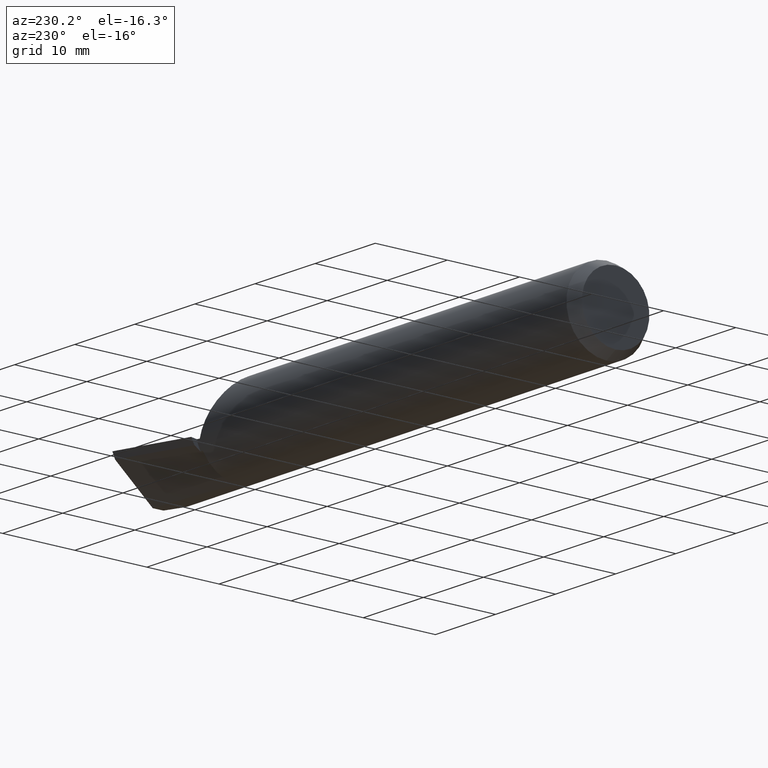
[diagram: clean part render]
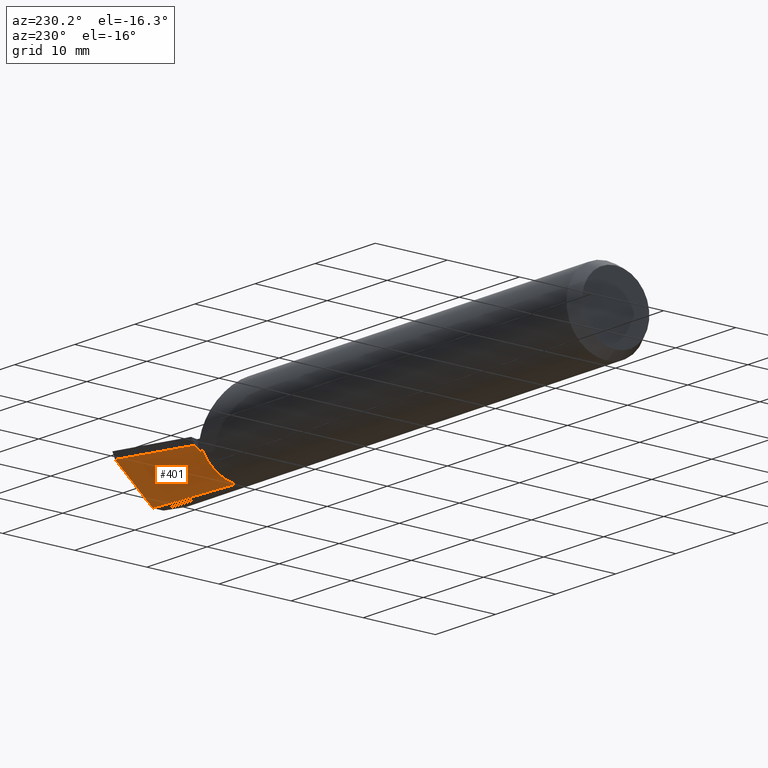
[diagram: same view with one face highlighted and labeled with its STEP entity id]
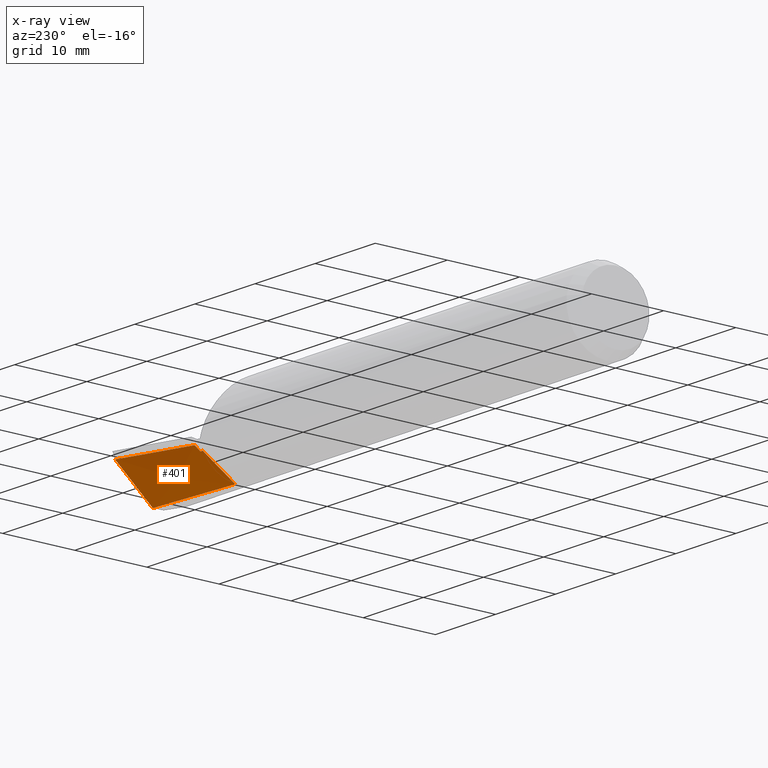
[diagram: x-ray of the same camera — body ghosted, the highlighted face saturated]
A machine part, auxiliary view. The second image highlights one B-rep face of the part: STEP entity #401.
The next image is the same camera in x-ray: the body ghosted, the highlighted face saturated — about 0% of this face is hidden behind the body in this view.
In plain terms, the highlighted face is a freeform B-spline surface patch.
Its self-contained STEP definition (entity closure, byte-faithful):
#5 = VERTEX_POINT ( 'NONE', #477 ) ;
#6 = CARTESIAN_POINT ( 'NONE',  ( 2.375000000000001776, 0.2195062469289532914, -0.09505118791255254274 ) ) ;
#26 = VERTEX_POINT ( 'NONE', #544 ) ;
#30 = B_SPLINE_CURVE_WITH_KNOTS ( 'NONE', 3,
 ( #405, #529, #416, #184 ),
 .UNSPECIFIED., .F., .F.,
 ( 4, 4 ),
 ( 6.281806324945532255E-05, 0.006714991020779010472 ),
 .UNSPECIFIED. ) ;
#34 = B_SPLINE_CURVE_WITH_KNOTS ( 'NONE', 3,
 ( #559, #496, #345, #736 ),
 .UNSPECIFIED., .F., .F.,
 ( 4, 4 ),
 ( 0.0003823762464701765972, 0.01264710855387443829 ),
 .UNSPECIFIED. ) ;
#38 =( BOUNDED_CURVE ( )  B_SPLINE_CURVE ( 2, ( #173, #64, #438 ),
 .UNSPECIFIED., .F., .T. ) 
 B_SPLINE_CURVE_WITH_KNOTS ( ( 3, 3 ),
 ( 0.4075927071583006489, 0.4196108242066911576 ),
 .UNSPECIFIED. ) 
 CURVE ( )  GEOMETRIC_REPRESENTATION_ITEM ( )  RATIONAL_B_SPLINE_CURVE ( ( 0.9974221972044268192, 0.9975518224474401174, 0.9976913329914361972 ) ) 
 REPRESENTATION_ITEM ( '' )  );
#53 = ORIENTED_EDGE ( 'NONE', *, *, #116, .F. ) ;
#54 = CARTESIAN_POINT ( 'NONE',  ( 2.489999999999999769, 0.1918135994642089504, -0.1049541116906446275 ) ) ;
#60 = VERTEX_POINT ( 'NONE', #260 ) ;
#64 = CARTESIAN_POINT ( 'NONE',  ( 2.482495906476935410, 0.01541270954320094443, -0.2181071841326581162 ) ) ;
#78 = EDGE_CURVE ( 'NONE', #372, #99, #162, .T. ) ;
#94 = CARTESIAN_POINT ( 'NONE',  ( 2.474998967115994652, 0.1911388645456205126, -0.1061779492325103103 ) ) ;
#99 = VERTEX_POINT ( 'NONE', #466 ) ;
#104 = FACE_OUTER_BOUND ( 'NONE', #115, .T. ) ;
#115 = EDGE_LOOP ( 'NONE', ( #641, #299, #303, #549, #53, #391, #574, #168 ) ) ;
#116 = EDGE_CURVE ( 'NONE', #372, #411, #342, .T. ) ;
#117 = CARTESIAN_POINT ( 'NONE',  ( 2.489999999999999769, 0.01517653587899060220, -0.2186499999999646504 ) ) ;
#162 =( BOUNDED_CURVE ( )  B_SPLINE_CURVE ( 2, ( #94, #505, #610 ),
 .UNSPECIFIED., .F., .T. ) 
 B_SPLINE_CURVE_WITH_KNOTS ( ( 3, 3 ),
 ( 0.5803891757933095086, 0.5924072928417014605 ),
 .UNSPECIFIED. ) 
 CURVE ( )  GEOMETRIC_REPRESENTATION_ITEM ( )  RATIONAL_B_SPLINE_CURVE ( ( 0.9976913329914360862, 0.9975518224474400064, 0.9974221972044267082 ) ) 
 REPRESENTATION_ITEM ( '' )  );
#168 = ORIENTED_EDGE ( 'NONE', *, *, #733, .F. ) ;
#173 = CARTESIAN_POINT ( 'NONE',  ( 2.489999999999999769, 0.01609851000112816344, -0.2180565533886646701 ) ) ;
#184 = CARTESIAN_POINT ( 'NONE',  ( 2.995650168487128173, 0.2365632825314395171, -0.03543351693485011222 ) ) ;
#186 =( BOUNDED_CURVE ( )  B_SPLINE_CURVE ( 1, ( #117, #452 ),
 .UNSPECIFIED., .F., .T. ) 
 B_SPLINE_CURVE_WITH_KNOTS ( ( 2, 2 ),
 ( 0.001548922772798105125, 0.001576772748276457229 ),
 .UNSPECIFIED. ) 
 CURVE ( )  GEOMETRIC_REPRESENTATION_ITEM ( )  RATIONAL_B_SPLINE_CURVE ( ( 0.9974221972044268192, 0.9974221972044268192 ) ) 
 REPRESENTATION_ITEM ( '' )  );
#215 = CARTESIAN_POINT ( 'NONE',  ( 2.062500000000002665, -0.1025015563926100354, -0.2521463777385072325 ) ) ;
#221 = CARTESIAN_POINT ( 'NONE',  ( 2.687500000000001332, -0.03374861584210742810, -0.2700840532099205715 ) ) ;
#260 = CARTESIAN_POINT ( 'NONE',  ( 2.489999999999999769, 0.01609851000112816344, -0.2180565533886646701 ) ) ;
#264 =( BOUNDED_SURFACE ( )  B_SPLINE_SURFACE ( 1, 2, ( 
 ( #389, #550, #6, #621, #269 ),
 ( #283, #221, #682, #215, #668 ) ),
 .UNSPECIFIED., .F., .F., .F. ) 
 B_SPLINE_SURFACE_WITH_KNOTS ( ( 2, 2 ),
 ( 3, 2, 3 ),
 ( 0.000000000000000000, 1.000000000000000000 ),
 ( 0.000000000000000000, 0.5000000000000000000, 1.000000000000000000 ),
 .UNSPECIFIED. ) 
 GEOMETRIC_REPRESENTATION_ITEM ( )  RATIONAL_B_SPLINE_SURFACE ( (
 ( 1.000000000000000000, 0.9914448613738103822, 1.000000000000000000, 0.9914448613738103822, 1.000000000000000000),
 ( 1.000000000000000000, 0.9914448613738103822, 1.000000000000000000, 0.9914448613738103822, 1.000000000000000000) ) ) 
 REPRESENTATION_ITEM ( '' )  SURFACE ( )  );
#269 = CARTESIAN_POINT ( 'NONE',  ( 1.750000000000003109, 0.1874256952490743477, -0.1486247944483796435 ) ) ;
#283 = CARTESIAN_POINT ( 'NONE',  ( 3.000000000000000444, 0.001777810631851324845, -0.2698499999999999233 ) ) ;
#296 = CARTESIAN_POINT ( 'NONE',  ( 2.995650168487128173, 0.2365632825314395171, -0.03543351693485011222 ) ) ;
#299 = ORIENTED_EDGE ( 'NONE', *, *, #346, .F. ) ;
#303 = ORIENTED_EDGE ( 'NONE', *, *, #469, .T. ) ;
#318 =( BOUNDED_CURVE ( )  B_SPLINE_CURVE ( 1, ( #54, #339 ),
 .UNSPECIFIED., .F., .T. ) 
 B_SPLINE_CURVE_WITH_KNOTS ( ( 2, 2 ),
 ( 0.006884580001453520851, 0.007852015136062377026 ),
 .UNSPECIFIED. ) 
 CURVE ( )  GEOMETRIC_REPRESENTATION_ITEM ( )  RATIONAL_B_SPLINE_CURVE ( ( 0.9974221972044268192, 0.9974221972044268192 ) ) 
 REPRESENTATION_ITEM ( '' )  );
#339 = CARTESIAN_POINT ( 'NONE',  ( 2.489999999999999769, 0.2238405633532558059, -0.08433933223662058720 ) ) ;
#342 = LINE ( 'NONE', #568, #406 ) ;
#344 =( BOUNDED_CURVE ( )  B_SPLINE_CURVE ( 2, ( #373, #647, #726 ),
 .UNSPECIFIED., .F., .F. ) 
 B_SPLINE_CURVE_WITH_KNOTS ( ( 3, 3 ),
 ( 0.003509261759326628982, 0.4075927071583004824 ),
 .UNSPECIFIED. ) 
 CURVE ( )  GEOMETRIC_REPRESENTATION_ITEM ( )  RATIONAL_B_SPLINE_CURVE ( ( 0.9998807539633451924, 0.9930638260389134109, 0.9974221972044268192 ) ) 
 REPRESENTATION_ITEM ( '' )  );
#345 = CARTESIAN_POINT ( 'NONE',  ( 2.810970655082818404, 0.03974745817720095470, -0.2186500000000000110 ) ) ;
#346 = EDGE_CURVE ( 'NONE', #26, #348, #34, .T. ) ;
#348 = VERTEX_POINT ( 'NONE', #609 ) ;
#372 = VERTEX_POINT ( 'NONE', #562 ) ;
#373 = CARTESIAN_POINT ( 'NONE',  ( 2.995650168487128173, 0.2365632825314395171, -0.03543351693485011222 ) ) ;
#389 = CARTESIAN_POINT ( 'NONE',  ( 3.000000000000000444, 0.2366278106318485952, -0.03500000000000001027 ) ) ;
#391 = ORIENTED_EDGE ( 'NONE', *, *, #78, .T. ) ;
#401 = ADVANCED_FACE ( 'NONE', ( #104 ), #264, .T. ) ;
#403 = DIRECTION ( 'NONE',  ( 0.000000000000000000, -0.8443279255020124108, -0.5358267949790008755 ) ) ;
#405 = CARTESIAN_POINT ( 'NONE',  ( 2.971533666062131207, 0.05098806548735788924, -0.2186499999999999277 ) ) ;
#406 = VECTOR ( 'NONE', #403, 39.37007874015748854 ) ;
#411 = VERTEX_POINT ( 'NONE', #673 ) ;
#416 = CARTESIAN_POINT ( 'NONE',  ( 2.987540355590121433, 0.1753319710273700816, -0.09712830031009450638 ) ) ;
#428 = EDGE_CURVE ( 'NONE', #60, #411, #38, .T. ) ;
#438 = CARTESIAN_POINT ( 'NONE',  ( 2.474996901347982892, 0.01471922584789448971, -0.2181539979772589843 ) ) ;
#450 = EDGE_CURVE ( 'NONE', #99, #5, #318, .T. ) ;
#452 = CARTESIAN_POINT ( 'NONE',  ( 2.489999999999999769, 0.01609851000112816344, -0.2180565533886646701 ) ) ;
#466 = CARTESIAN_POINT ( 'NONE',  ( 2.489999999999999769, 0.1918135994642089504, -0.1049541116906446275 ) ) ;
#469 = EDGE_CURVE ( 'NONE', #26, #60, #186, .T. ) ;
#477 = CARTESIAN_POINT ( 'NONE',  ( 2.489999999999999769, 0.2238405633532558059, -0.08433933223662058720 ) ) ;
#496 = CARTESIAN_POINT ( 'NONE',  ( 2.650423596466449538, 0.02829228920356244292, -0.2186500000000000110 ) ) ;
#505 = CARTESIAN_POINT ( 'NONE',  ( 2.482495906476937630, 0.1914835127187945740, -0.1055573765428618332 ) ) ;
#529 = CARTESIAN_POINT ( 'NONE',  ( 2.979501768381279003, 0.1134645655244296419, -0.1581978106672607687 ) ) ;
#534 = VERTEX_POINT ( 'NONE', #296 ) ;
#544 = CARTESIAN_POINT ( 'NONE',  ( 2.489999999999999769, 0.01517653587899060220, -0.2186499999999646504 ) ) ;
#549 = ORIENTED_EDGE ( 'NONE', *, *, #428, .T. ) ;
#550 = CARTESIAN_POINT ( 'NONE',  ( 2.687500000000001332, 0.2320199732162897266, -0.06615264226832021088 ) ) ;
#559 = CARTESIAN_POINT ( 'NONE',  ( 2.489999999999999769, 0.01517653587899060220, -0.2186499999999646504 ) ) ;
#562 = CARTESIAN_POINT ( 'NONE',  ( 2.474998967115994652, 0.1911388645456205126, -0.1061779492325103103 ) ) ;
#568 = CARTESIAN_POINT ( 'NONE',  ( 2.475000000000000089, 0.2232940332876097167, -0.08577584428365500613 ) ) ;
#574 = ORIENTED_EDGE ( 'NONE', *, *, #450, .T. ) ;
#580 = EDGE_CURVE ( 'NONE', #348, #534, #30, .T. ) ;
#609 = CARTESIAN_POINT ( 'NONE',  ( 2.971533666062131207, 0.05098806548735788924, -0.2186499999999999277 ) ) ;
#610 = CARTESIAN_POINT ( 'NONE',  ( 2.489999999999999769, 0.1918135994642089504, -0.1049541116906446275 ) ) ;
#621 = CARTESIAN_POINT ( 'NONE',  ( 2.062500000000002665, 0.2069925206416169117, -0.1239497335567849440 ) ) ;
#641 = ORIENTED_EDGE ( 'NONE', *, *, #580, .F. ) ;
#647 = CARTESIAN_POINT ( 'NONE',  ( 2.743449343808145535, 0.2327994020812707010, -0.06056215194968566501 ) ) ;
#668 = CARTESIAN_POINT ( 'NONE',  ( 1.750000000000003109, -0.1333853708296986462, -0.2345858605271563535 ) ) ;
#673 = CARTESIAN_POINT ( 'NONE',  ( 2.474996901347982892, 0.01471922584789448971, -0.2181539979772589843 ) ) ;
#682 = CARTESIAN_POINT ( 'NONE',  ( 2.375000000000001776, -0.06812508611735872133, -0.2611152154742139020 ) ) ;
#726 = CARTESIAN_POINT ( 'NONE',  ( 2.489999999999999769, 0.2238405633532558059, -0.08433933223662058720 ) ) ;
#733 = EDGE_CURVE ( 'NONE', #534, #5, #344, .T. ) ;
#736 = CARTESIAN_POINT ( 'NONE',  ( 2.971533666062131207, 0.05098806548735788924, -0.2186499999999999277 ) ) ;